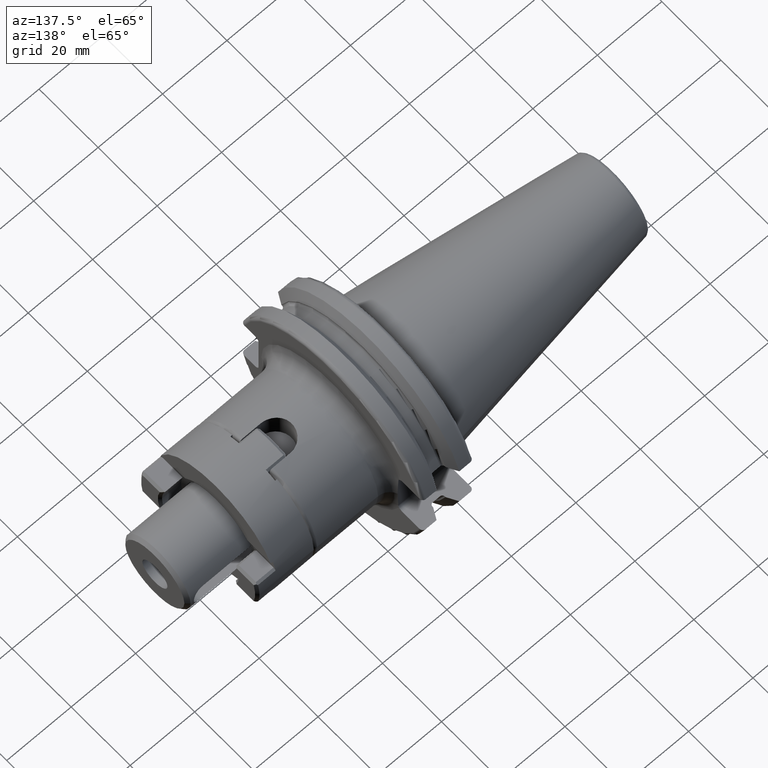
[diagram: clean part render]
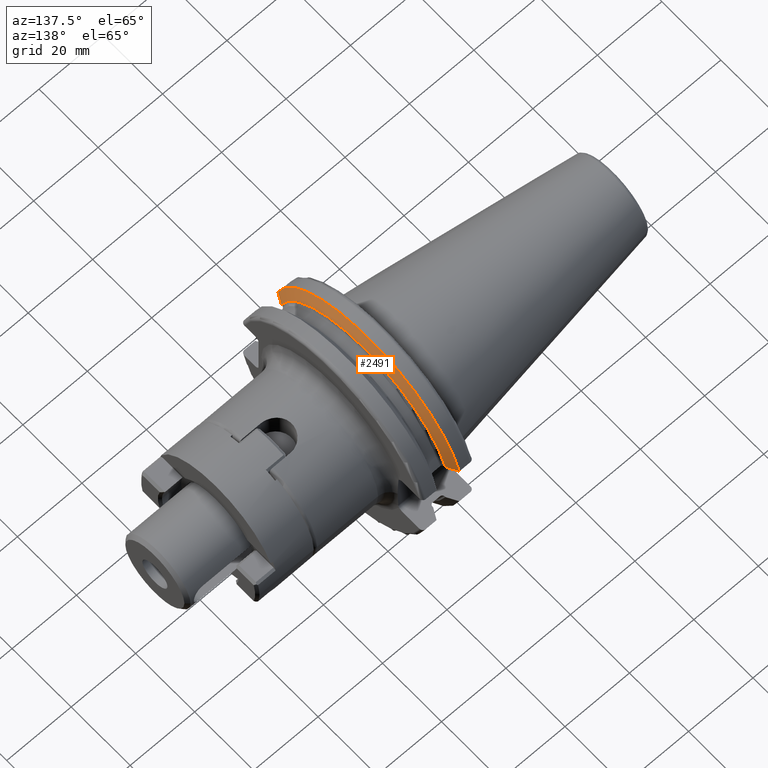
[diagram: same view with one face highlighted and labeled with its STEP entity id]
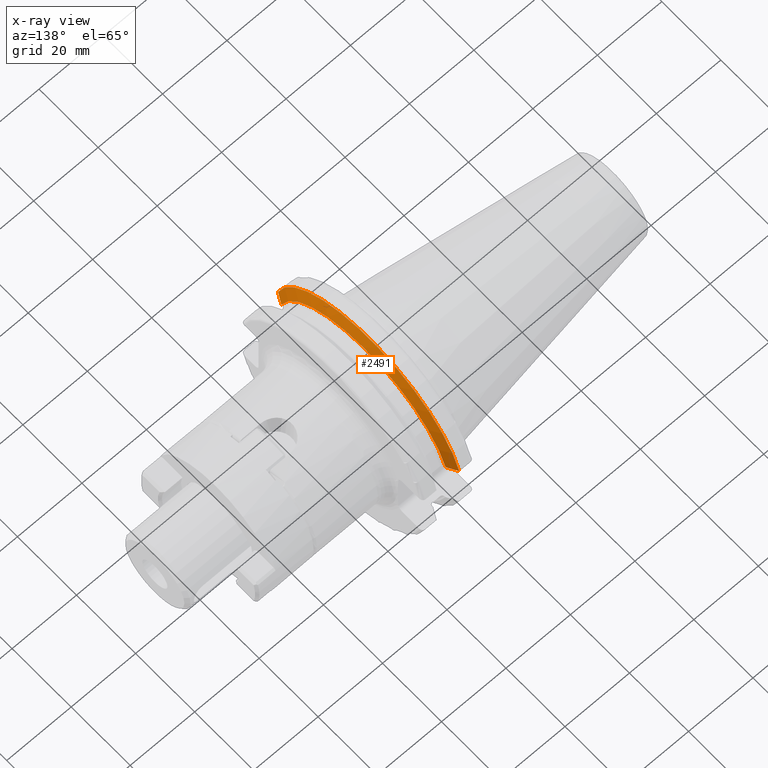
[diagram: x-ray of the same camera — body ghosted, the highlighted face saturated]
A machine part, auxiliary view. The second image highlights one B-rep face of the part: STEP entity #2491.
The next image is the same camera in x-ray: the body ghosted, the highlighted face saturated — about 0% of this face is hidden behind the body in this view.
In plain terms, the highlighted conical surface has half-angle 60 deg.
Its self-contained STEP definition (entity closure, byte-faithful):
#435=CARTESIAN_POINT('',(7.645946479578E0,0.E0,0.E0));
#436=DIRECTION('',(1.E0,0.E0,0.E0));
#437=DIRECTION('',(0.E0,9.669363825036E-1,2.550177095632E-1));
#438=AXIS2_PLACEMENT_3D('',#435,#436,#437);
#462=CARTESIAN_POINT('',(7.645946479578E0,3.071231684927E1,8.1E0));
#463=CARTESIAN_POINT('',(7.831754864835E0,3.037948258059E1,8.1E0));
#464=CARTESIAN_POINT('',(8.199252814970E0,2.972048825911E1,8.1E0));
#465=CARTESIAN_POINT('',(8.738047920141E0,2.875212438619E1,8.1E0));
#466=CARTESIAN_POINT('',(9.089058006747E0,2.811971443922E1,8.1E0));
#467=CARTESIAN_POINT('',(9.2625E0,2.780681820245E1,8.1E0));
#469=CARTESIAN_POINT('',(9.2625E0,-2.780681820245E1,8.1E0));
#470=CARTESIAN_POINT('',(9.089138247115E0,-2.811956968242E1,8.1E0));
#471=CARTESIAN_POINT('',(8.738235514848E0,-2.875178670793E1,8.1E0));
#472=CARTESIAN_POINT('',(8.199445066245E0,-2.972014324708E1,8.1E0));
#473=CARTESIAN_POINT('',(7.831837395590E0,-3.037933474515E1,8.1E0));
#474=CARTESIAN_POINT('',(7.645946479578E0,-3.071231684927E1,8.1E0));
#484=CARTESIAN_POINT('',(9.2625E0,0.E0,0.E0));
#485=DIRECTION('',(1.E0,0.E0,0.E0));
#486=DIRECTION('',(0.E0,9.600957415706E-1,2.796715341576E-1));
#487=AXIS2_PLACEMENT_3D('',#484,#485,#486);
#1662=CARTESIAN_POINT('',(9.2625E0,2.780681820245E1,8.1E0));
#1664=VERTEX_POINT('',#1662);
#1674=CARTESIAN_POINT('',(9.2625E0,-2.780681820245E1,8.1E0));
#1676=VERTEX_POINT('',#1674);
#1716=VERTEX_POINT('',#462);
#1717=VERTEX_POINT('',#474);
#2479=CARTESIAN_POINT('',(8.454223239789E0,0.E0,0.E0));
#2480=DIRECTION('',(-1.E0,0.E0,0.E0));
#2481=DIRECTION('',(0.E0,1.E0,0.E0));
#2482=AXIS2_PLACEMENT_3D('',#2479,#2480,#2481);
#2483=CONICAL_SURFACE('',#2482,3.036252358474E1,6.E1);
#2484=ORIENTED_EDGE('',*,*,#2209,.T.);
#2486=ORIENTED_EDGE('',*,*,#2485,.T.);
#2487=ORIENTED_EDGE('',*,*,#2247,.T.);
#2488=ORIENTED_EDGE('',*,*,#2459,.F.);
#2489=EDGE_LOOP('',(#2484,#2486,#2487,#2488));
#2490=FACE_OUTER_BOUND('',#2489,.F.);
#2491=ADVANCED_FACE('',(#2490),#2483,.T.);
#439=CIRCLE('',#438,3.17625E1);
#468=B_SPLINE_CURVE_WITH_KNOTS('',3,(#462,#463,#464,#465,#466,#467),
.UNSPECIFIED.,.F.,.F.,(4,1,1,4),(0.E0,3.333333333333E-1,6.666666666667E-1,1.E0),
.UNSPECIFIED.);
#475=B_SPLINE_CURVE_WITH_KNOTS('',3,(#469,#470,#471,#472,#473,#474),
.UNSPECIFIED.,.F.,.F.,(4,1,1,4),(0.E0,3.333333333333E-1,6.666666666667E-1,1.E0),
.UNSPECIFIED.);
#488=CIRCLE('',#487,2.896254716948E1);
#2209=EDGE_CURVE('',#1716,#1664,#468,.T.);
#2247=EDGE_CURVE('',#1676,#1717,#475,.T.);
#2459=EDGE_CURVE('',#1716,#1717,#439,.T.);
#2485=EDGE_CURVE('',#1664,#1676,#488,.T.);